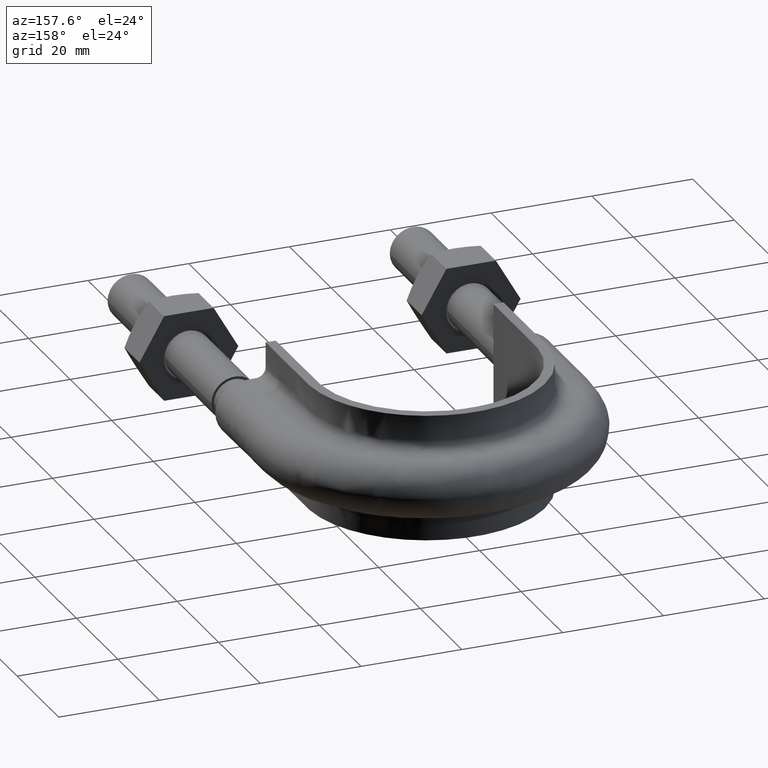
[diagram: clean part render]
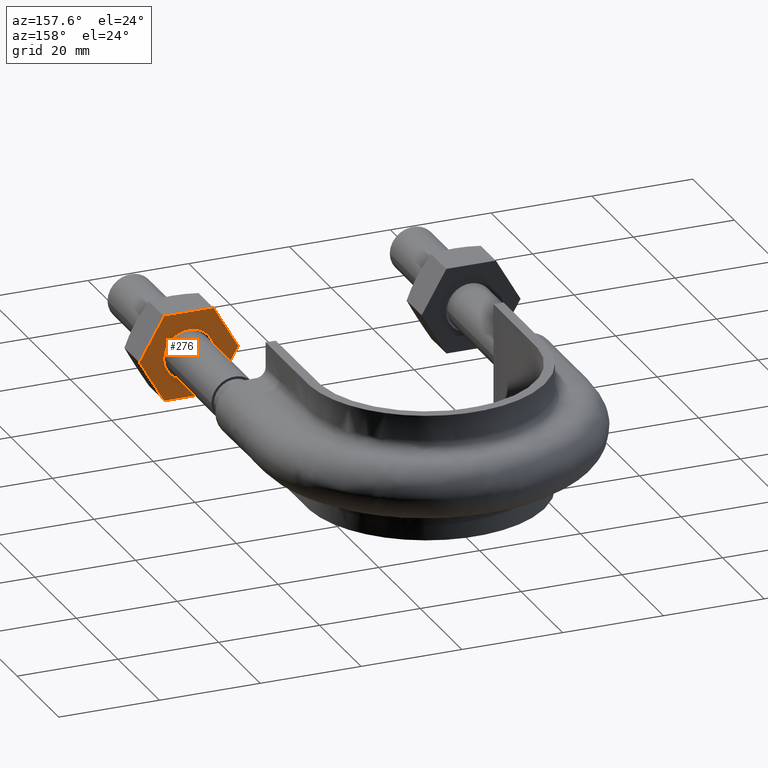
[diagram: same view with one face highlighted and labeled with its STEP entity id]
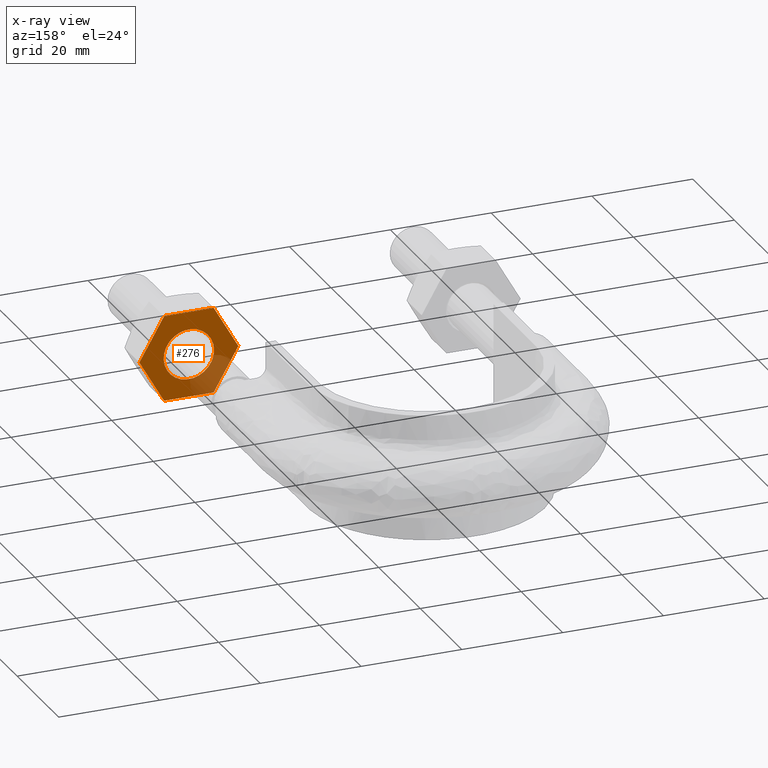
[diagram: x-ray of the same camera — body ghosted, the highlighted face saturated]
A machine part, auxiliary view. The second image highlights one B-rep face of the part: STEP entity #276.
The next image is the same camera in x-ray: the body ghosted, the highlighted face saturated — about 20% of this face is hidden behind the body in this view.
In plain terms, the highlighted planar face has unit normal (-0, -1, -0).
Its self-contained STEP definition (entity closure, byte-faithful):
#276 = ADVANCED_FACE( '', ( #426, #427 ), #428, .F. );
#426 = FACE_BOUND( '', #1423, .T. );
#427 = FACE_OUTER_BOUND( '', #1424, .T. );
#428 = PLANE( '', #1425 );
#1423 = EDGE_LOOP( '', ( #1862 ) );
#1424 = EDGE_LOOP( '', ( #1863, #1864, #1865, #1866, #1867, #1868, #1869, #1870, #1871, #1872, #1873, #1874 ) );
#1425 = AXIS2_PLACEMENT_3D( '', #1875, #1876, #1877 );
#1862 = ORIENTED_EDGE( '', *, *, #2119, .F. );
#1863 = ORIENTED_EDGE( '', *, *, #2120, .T. );
#1864 = ORIENTED_EDGE( '', *, *, #2121, .T. );
#1865 = ORIENTED_EDGE( '', *, *, #2122, .T. );
#1866 = ORIENTED_EDGE( '', *, *, #2115, .T. );
#1867 = ORIENTED_EDGE( '', *, *, #2123, .T. );
#1868 = ORIENTED_EDGE( '', *, *, #2124, .T. );
#1869 = ORIENTED_EDGE( '', *, *, #2125, .T. );
#1870 = ORIENTED_EDGE( '', *, *, #2126, .T. );
#1871 = ORIENTED_EDGE( '', *, *, #2127, .T. );
#1872 = ORIENTED_EDGE( '', *, *, #2128, .T. );
#1873 = ORIENTED_EDGE( '', *, *, #2129, .T. );
#1874 = ORIENTED_EDGE( '', *, *, #2130, .T. );
#1875 = CARTESIAN_POINT( '', ( 32.9000000000000, 28.0000000000000, 8.48704895708750 ) );
#1876 = DIRECTION( '', ( -2.44921270764475E-016, -1.00000000000000, -6.12303176911189E-017 ) );
#1877 = DIRECTION( '', ( 0.866025403784439, -1.81492883563643E-016, -0.500000000000000 ) );
#2115 = EDGE_CURVE( '', #2342, #2340, #2343, .T. );
#2119 = EDGE_CURVE( '', #2348, #2348, #2349, .T. );
#2120 = EDGE_CURVE( '', #2350, #2351, #2352, .T. );
#2121 = EDGE_CURVE( '', #2351, #2353, #2354, .T. );
#2122 = EDGE_CURVE( '', #2353, #2342, #2355, .T. );
#2123 = EDGE_CURVE( '', #2340, #2356, #2357, .T. );
#2124 = EDGE_CURVE( '', #2356, #2358, #2359, .T. );
#2125 = EDGE_CURVE( '', #2358, #2360, #2361, .T. );
#2126 = EDGE_CURVE( '', #2360, #2362, #2363, .T. );
#2127 = EDGE_CURVE( '', #2362, #2364, #2365, .T. );
#2128 = EDGE_CURVE( '', #2364, #2366, #2367, .T. );
#2129 = EDGE_CURVE( '', #2366, #2368, #2369, .T. );
#2130 = EDGE_CURVE( '', #2368, #2350, #2370, .T. );
#2340 = VERTEX_POINT( '', #2936 );
#2342 = VERTEX_POINT( '', #2939 );
#2343 = LINE( '', #2940, #2941 );
#2348 = VERTEX_POINT( '', #2954 );
#2349 = CIRCLE( '', #2955, 5.00000000000000 );
#2350 = VERTEX_POINT( '', #2956 );
#2351 = VERTEX_POINT( '', #2957 );
#2352 = CIRCLE( '', #2958, 9.80000000000000 );
#2353 = VERTEX_POINT( '', #2959 );
#2354 = LINE( '', #2960, #2961 );
#2355 = CIRCLE( '', #2962, 9.80000000000000 );
#2356 = VERTEX_POINT( '', #2963 );
#2357 = CIRCLE( '', #2964, 9.80000000000000 );
#2358 = VERTEX_POINT( '', #2965 );
#2359 = LINE( '', #2966, #2967 );
#2360 = VERTEX_POINT( '', #2968 );
#2361 = CIRCLE( '', #2969, 9.80000000000000 );
#2362 = VERTEX_POINT( '', #2970 );
#2363 = LINE( '', #2971, #2972 );
#2364 = VERTEX_POINT( '', #2973 );
#2365 = CIRCLE( '', #2974, 9.80000000000000 );
#2366 = VERTEX_POINT( '', #2975 );
#2367 = LINE( '', #2976, #2977 );
#2368 = VERTEX_POINT( '', #2978 );
#2369 = CIRCLE( '', #2979, 9.80000000000000 );
#2370 = LINE( '', #2980, #2981 );
#2936 = CARTESIAN_POINT( '', ( 23.1225006406971, 28.0000000000000, -8.50000000000000 ) );
#2939 = CARTESIAN_POINT( '', ( 32.8774993593029, 28.0000000000000, -8.49999999999999 ) );
#2940 = CARTESIAN_POINT( '', ( 32.9000000000000, 28.0000000000000, -8.50000000000000 ) );
#2941 = VECTOR( '', #3245, 1000.00000000000 );
#2954 = CARTESIAN_POINT( '', ( 23.6698729810778, 28.0000000000000, 2.50000000000000 ) );
#2955 = AXIS2_PLACEMENT_3D( '', #3250, #3251, #3252 );
#2956 = CARTESIAN_POINT( '', ( 37.7999656118192, 28.0000000000000, 0.0259616479013818 ) );
#2957 = CARTESIAN_POINT( '', ( 37.7999656118192, 28.0000000000000, -0.0259616479013796 ) );
#2958 = AXIS2_PLACEMENT_3D( '', #3253, #3254, #3255 );
#2959 = CARTESIAN_POINT( '', ( 32.9224662525163, 28.0000000000000, -8.47403835209862 ) );
#2960 = CARTESIAN_POINT( '', ( 40.2612159321678, 28.0000000000000, 4.23704895708750 ) );
#2961 = VECTOR( '', #3256, 1000.00000000000 );
#2962 = AXIS2_PLACEMENT_3D( '', #3257, #3258, #3259 );
#2963 = CARTESIAN_POINT( '', ( 23.0775337474837, 28.0000000000000, -8.47403835209862 ) );
#2964 = AXIS2_PLACEMENT_3D( '', #3260, #3261, #3262 );
#2965 = CARTESIAN_POINT( '', ( 18.2000343881809, 28.0000000000000, -0.0259616479013822 ) );
#2966 = CARTESIAN_POINT( '', ( 18.1887840678323, 28.0000000000000, -0.00647552145625178 ) );
#2967 = VECTOR( '', #3263, 1000.00000000000 );
#2968 = CARTESIAN_POINT( '', ( 18.2000343881809, 28.0000000000000, 0.0259616479013818 ) );
#2969 = AXIS2_PLACEMENT_3D( '', #3264, #3265, #3266 );
#2970 = CARTESIAN_POINT( '', ( 23.0775337474837, 28.0000000000000, 8.47403835209862 ) );
#2971 = CARTESIAN_POINT( '', ( 25.5387840678323, 28.0000000000000, 12.7370489570875 ) );
#2972 = VECTOR( '', #3267, 1000.00000000000 );
#2973 = CARTESIAN_POINT( '', ( 23.1225006406971, 28.0000000000000, 8.50000000000000 ) );
#2974 = AXIS2_PLACEMENT_3D( '', #3268, #3269, #3270 );
#2975 = CARTESIAN_POINT( '', ( 32.8774993593029, 28.0000000000000, 8.50000000000000 ) );
#2976 = CARTESIAN_POINT( '', ( 32.9000000000000, 28.0000000000000, 8.50000000000000 ) );
#2977 = VECTOR( '', #3271, 1000.00000000000 );
#2978 = CARTESIAN_POINT( '', ( 32.9224662525163, 28.0000000000000, 8.47403835209862 ) );
#2979 = AXIS2_PLACEMENT_3D( '', #3272, #3273, #3274 );
#2980 = CARTESIAN_POINT( '', ( 32.9112159321678, 28.0000000000000, 8.49352447854375 ) );
#2981 = VECTOR( '', #3275, 1000.00000000000 );
#3245 = DIRECTION( '', ( -1.00000000000000, 2.44921270764475E-016, -5.55111512312578E-017 ) );
#3250 = CARTESIAN_POINT( '', ( 28.0000000000000, 28.0000000000000, 1.11228300875288E-015 ) );
#3251 = DIRECTION( '', ( 2.44921270764475E-016, 1.00000000000000, 6.12303176911189E-017 ) );
#3252 = DIRECTION( '', ( -0.866025403784439, 1.81492883563643E-016, 0.500000000000000 ) );
#3253 = CARTESIAN_POINT( '', ( 28.0000000000000, 28.0000000000000, 1.11228300875288E-015 ) );
#3254 = DIRECTION( '', ( 2.44921270764475E-016, 1.00000000000000, 6.12303176911189E-017 ) );
#3255 = DIRECTION( '', ( -0.866025403784439, 1.81492883563643E-016, 0.500000000000000 ) );
#3256 = DIRECTION( '', ( -0.500000000000000, 1.75487645984538E-016, -0.866025403784439 ) );
#3257 = CARTESIAN_POINT( '', ( 28.0000000000000, 28.0000000000000, 1.11228300875288E-015 ) );
#3258 = DIRECTION( '', ( 2.44921270764475E-016, 1.00000000000000, 6.12303176911189E-017 ) );
#3259 = DIRECTION( '', ( -0.866025403784439, 1.81492883563643E-016, 0.500000000000000 ) );
#3260 = CARTESIAN_POINT( '', ( 28.0000000000000, 28.0000000000000, 1.11228300875288E-015 ) );
#3261 = DIRECTION( '', ( 2.44921270764475E-016, 1.00000000000000, 6.12303176911189E-017 ) );
#3262 = DIRECTION( '', ( -0.866025403784439, 1.81492883563643E-016, 0.500000000000000 ) );
#3263 = DIRECTION( '', ( -0.500000000000000, 6.94336247799371E-017, 0.866025403784439 ) );
#3264 = CARTESIAN_POINT( '', ( 28.0000000000000, 28.0000000000000, 1.11228300875288E-015 ) );
#3265 = DIRECTION( '', ( 2.44921270764475E-016, 1.00000000000000, 6.12303176911189E-017 ) );
#3266 = DIRECTION( '', ( -0.866025403784439, 1.81492883563643E-016, 0.500000000000000 ) );
#3267 = DIRECTION( '', ( 0.500000000000000, -1.75487645984538E-016, 0.866025403784439 ) );
#3268 = CARTESIAN_POINT( '', ( 28.0000000000000, 28.0000000000000, 1.11228300875288E-015 ) );
#3269 = DIRECTION( '', ( 2.44921270764475E-016, 1.00000000000000, 6.12303176911189E-017 ) );
#3270 = DIRECTION( '', ( -0.866025403784439, 1.81492883563643E-016, 0.500000000000000 ) );
#3271 = DIRECTION( '', ( 1.00000000000000, -2.44921270764475E-016, 5.55111512312578E-017 ) );
#3272 = CARTESIAN_POINT( '', ( 28.0000000000000, 28.0000000000000, 1.11228300875288E-015 ) );
#3273 = DIRECTION( '', ( 2.44921270764475E-016, 1.00000000000000, 6.12303176911189E-017 ) );
#3274 = DIRECTION( '', ( -0.866025403784439, 1.81492883563643E-016, 0.500000000000000 ) );
#3275 = DIRECTION( '', ( 0.500000000000000, -6.94336247799371E-017, -0.866025403784439 ) );